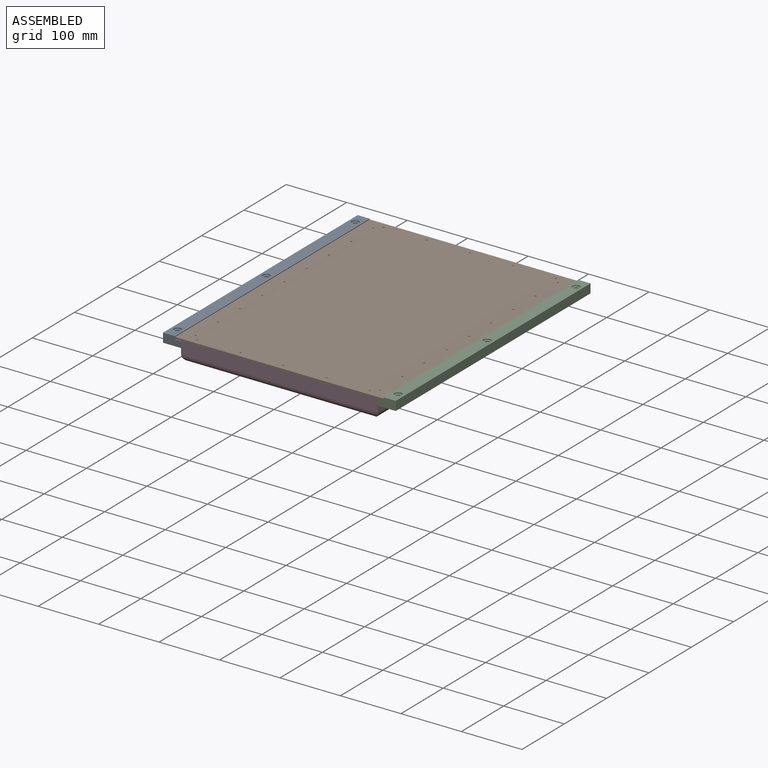
[diagram: assembled view]
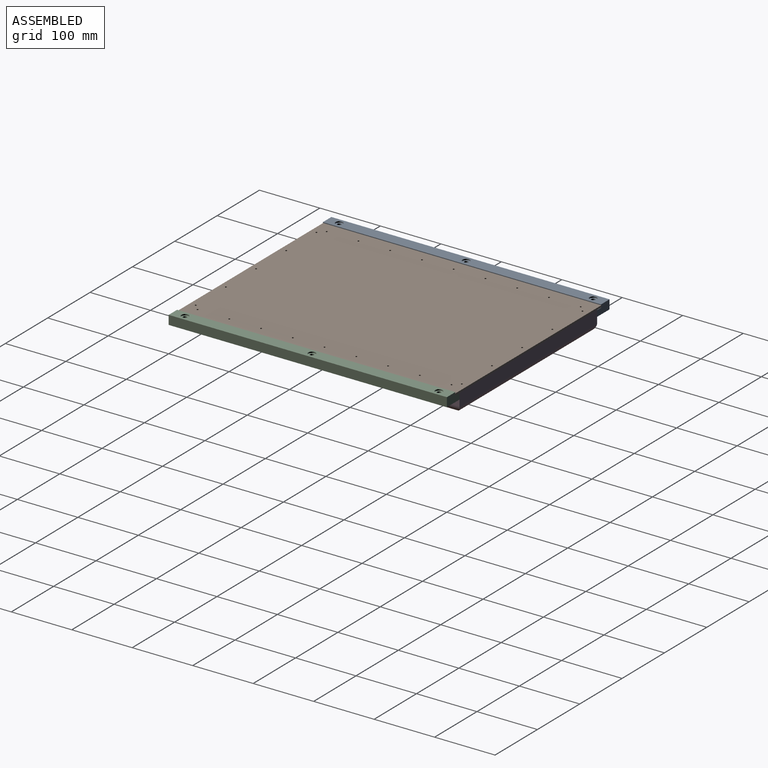
[diagram: assembled view, second angle]
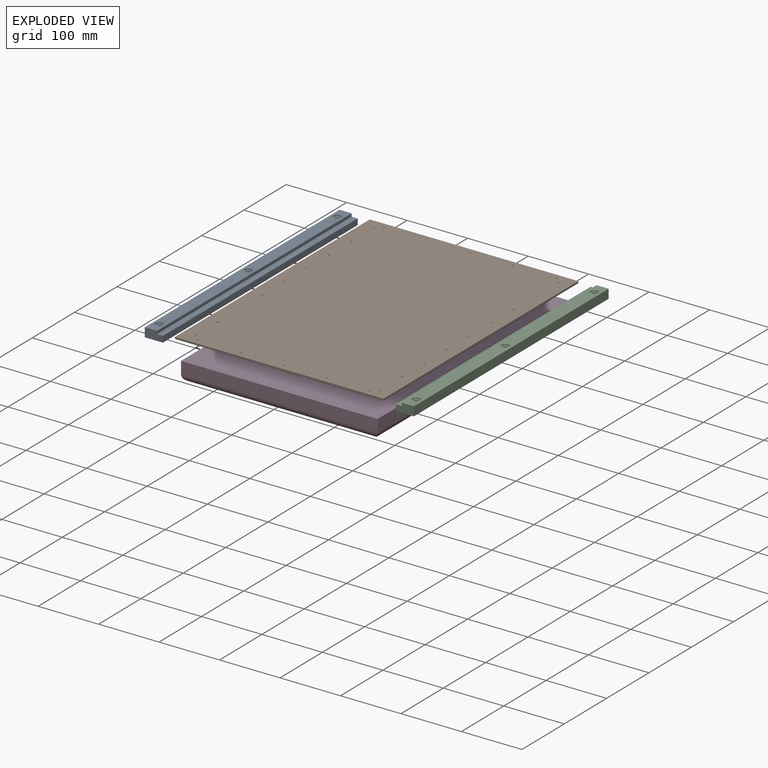
[diagram: exploded view]
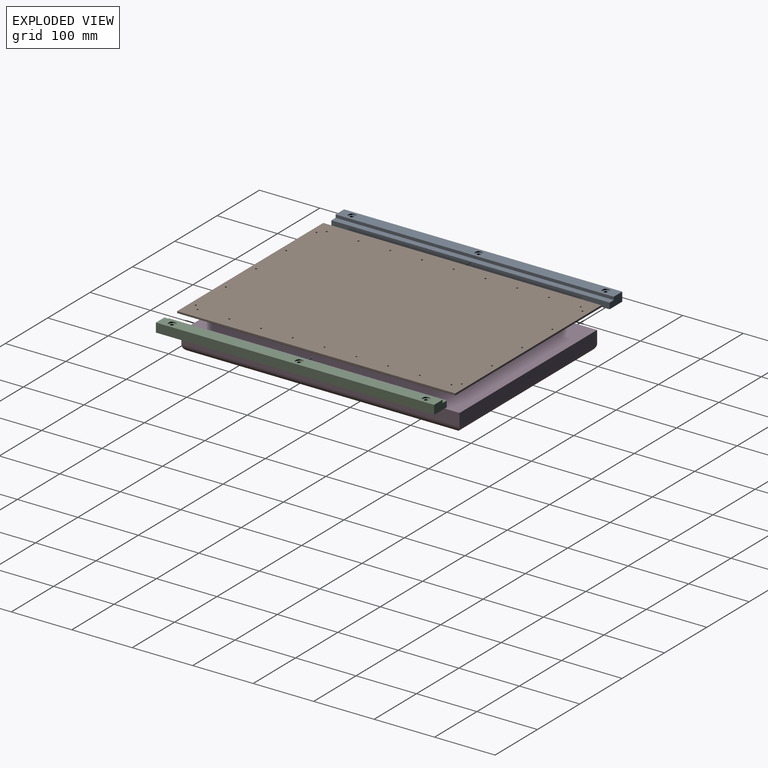
[diagram: exploded view, second angle]
ASSEMBLY  parts=4 mates=4
PART A: 23 faces, bbox 30x460x15 mm
  f0: cylinder r=3.25mm len=8mm, axis (0,0,-1), area 163.4mm2, adj f15,f21
  f1: cylinder r=3.25mm len=8mm, axis (0,0,-1), area 163.4mm2, adj f13,f19
  f2: cylinder r=3.25mm len=8mm, axis (0,0,-1), area 163.4mm2, adj f11,f17
  f3: plane 460x20mm, normal (0,0,1), area 8860.7mm2, adj f4,f8,f9,f10,f18,f20,f22
  f4: plane 460x15mm, normal (-1,0,0), area 6900mm2, adj f3,f5,f9,f10
  f5: plane 460x30mm, normal (0,0,-1), area 13514.9mm2, adj f4,f6,f9,f10,f12,f14,f16
  f6: plane 460x10mm, normal (1,0,0), area 4600mm2, adj f5,f7,f9,f10
  f7: plane 460x10mm, normal (0,0,1), area 4600mm2, adj f6,f8,f9,f10
  f8: plane 460x5mm, normal (1,0,0), area 2300mm2, adj f3,f7,f9,f10
  f9: plane 30x15mm, normal (0,1,0), area 400mm2, adj f3,f4,f5,f6,f7,f8
  f10: plane 30x15mm, normal (0,-1,0), area 400mm2, adj f3,f4,f5,f6,f7,f8
  f11: plane 11x11mm, normal (0,0,-1), area 61.9mm2, adj f2,f12
  f12: cylinder r=5.5mm len=11mm, axis (0,0,-1), area 172.8mm2, adj f5,f11
  f13: plane 11x11mm, normal (0,0,-1), area 61.9mm2, adj f1,f14
  f14: cylinder r=5.5mm len=11mm, axis (0,0,-1), area 172.8mm2, adj f5,f13
  f15: plane 11x11mm, normal (0,0,-1), area 61.9mm2, adj f0,f16
  f16: cylinder r=5.5mm len=11mm, axis (0,0,-1), area 172.8mm2, adj f5,f15
  f17: plane 12x12mm, normal (0,0,1), area 79.9mm2, adj f2,f18
  f18: cylinder r=6mm len=12mm, axis (0,0,1), area 75.4mm2, adj f3,f17
  f19: plane 12x12mm, normal (0,0,1), area 79.9mm2, adj f1,f20
  f20: cylinder r=6mm len=12mm, axis (0,0,1), area 75.4mm2, adj f3,f19
  f21: plane 12x12mm, normal (0,0,1), area 79.9mm2, adj f0,f22
  f22: cylinder r=6mm len=12mm, axis (0,0,1), area 75.4mm2, adj f3,f21
PART B: 34 faces, bbox 345x460x3 mm
  f0: plane 345x3mm, normal (0,1,0), area 1035mm2, adj f1,f3,f4,f5
  f1: plane 460x3mm, normal (-1,0,0), area 1380mm2, adj f0,f2,f4,f5
  f2: plane 345x3mm, normal (0,-1,0), area 1035mm2, adj f1,f3,f4,f5
  f3: plane 460x3mm, normal (1,0,0), area 1380mm2, adj f0,f2,f4,f5
  f4: plane 460x345mm, normal (0,0,1), area 158502.1mm2, adj f0,f1,f2,f3,f6,f7,f8,f9
  f5: plane 460x345mm, normal (0,0,-1), area 158502.1mm2, adj f0,f1,f2,f3,f6,f7,f8,f9
  f6: cylinder r=1.5mm len=3mm, axis (0,0,1), area 28.3mm2, adj f4,f5
  f7: cylinder r=1.5mm len=3mm, axis (0,0,1), area 28.3mm2, adj f4,f5
  f8: cylinder r=1.5mm len=3mm, axis (0,0,1), area 28.3mm2, adj f4,f5
  f9: cylinder r=1.5mm len=3mm, axis (0,0,1), area 28.3mm2, adj f4,f5
  f10: cylinder r=1.5mm len=3mm, axis (0,0,1), area 28.3mm2, adj f4,f5
  f11: cylinder r=1.5mm len=3mm, axis (0,0,1), area 28.3mm2, adj f4,f5
  f12: cylinder r=1.5mm len=3mm, axis (0,0,1), area 28.3mm2, adj f4,f5
  f13: cylinder r=1.5mm len=3mm, axis (0,0,1), area 28.3mm2, adj f4,f5
  f14: cylinder r=1.5mm len=3mm, axis (0,0,1), area 28.3mm2, adj f4,f5
  f15: cylinder r=1.5mm len=3mm, axis (0,0,1), area 28.3mm2, adj f4,f5
  f16: cylinder r=1.5mm len=3mm, axis (0,0,1), area 28.3mm2, adj f4,f5
  f17: cylinder r=1.5mm len=3mm, axis (0,0,1), area 28.3mm2, adj f4,f5
  f18: cylinder r=1.5mm len=3mm, axis (0,0,1), area 28.3mm2, adj f4,f5
  f19: cylinder r=1.5mm len=3mm, axis (0,0,1), area 28.3mm2, adj f4,f5
  f20: cylinder r=1.5mm len=3mm, axis (0,0,1), area 28.3mm2, adj f4,f5
  f21: cylinder r=1.5mm len=3mm, axis (0,0,1), area 28.3mm2, adj f4,f5
  f22: cylinder r=1.5mm len=3mm, axis (0,0,1), area 28.3mm2, adj f4,f5
  f23: cylinder r=1.5mm len=3mm, axis (0,0,1), area 28.3mm2, adj f4,f5
  f24: cylinder r=1.5mm len=3mm, axis (0,0,1), area 28.3mm2, adj f4,f5
  f25: cylinder r=1.5mm len=3mm, axis (0,0,1), area 28.3mm2, adj f4,f5
  f26: cylinder r=1.5mm len=3mm, axis (0,0,1), area 28.3mm2, adj f4,f5
  f27: cylinder r=1.5mm len=3mm, axis (0,0,1), area 28.3mm2, adj f4,f5
  f28: cylinder r=1.5mm len=3mm, axis (0,0,1), area 28.3mm2, adj f4,f5
  f29: cylinder r=1.5mm len=3mm, axis (0,0,1), area 28.3mm2, adj f4,f5
  f30: cylinder r=1.5mm len=3mm, axis (0,0,1), area 28.3mm2, adj f4,f5
  f31: cylinder r=1.5mm len=3mm, axis (0,0,1), area 28.3mm2, adj f4,f5
  f32: cylinder r=1.5mm len=3mm, axis (0,0,1), area 28.3mm2, adj f4,f5
  f33: cylinder r=1.5mm len=3mm, axis (0,0,1), area 28.3mm2, adj f4,f5
PART C: same geometry as A
PART D: 10 faces, bbox 325x460x32 mm
  f0: plane 460x20mm, normal (-1,0,0), area 9200mm2, adj f1,f3,f5,f6
  f1: plane 325x20mm, normal (0,-1,0), area 6500mm2, adj f0,f2,f5,f8
  f2: plane 460x20mm, normal (1,0,0), area 9200mm2, adj f1,f3,f5,f9
  f3: plane 325x20mm, normal (0,1,0), area 6500mm2, adj f0,f2,f5,f7
  f4: plane 436x301mm, normal (0,0,1), area 131236mm2, adj f6,f7,f8,f9
  f5: plane 460x325mm, normal (0,0,-1), area 149500mm2, adj f0,f1,f2,f3
  f6: cylinder r=12mm len=460mm, axis (0,1,0), area 8506.4mm2, adj f0,f4,f7,f8
  f7: cylinder r=12mm len=325mm, axis (1,0,0), area 5961.7mm2, adj f3,f4,f6,f9
  f8: cylinder r=12mm len=325mm, axis (-1,0,0), area 5961.7mm2, adj f1,f4,f6,f9
  f9: cylinder r=12mm len=460mm, axis (0,-1,0), area 8506.4mm2, adj f2,f4,f7,f8
PLACE A t=(-181.91,-288.18,49.78)mm
PLACE B t=(10.28,-57.88,60.5)mm
PLACE C rot(axis=(0,0,1),180deg) t=(202.78,172.12,50.5)mm
PLACE D rot(axis=(1,0,0),180deg) t=(10.28,-57.88,60.5)mm
MATE planar C.f8 <-> B.f3  axis (-1,0,0) through (182.78,-57.88,63)mm
MATE parallel C.f10 <-> B.f0  axis (0,1,0) through (189.03,172.12,57.37)mm
MATE planar D.f5 <-> B.f5  axis (0,0,1) through (10.28,-57.88,60.5)mm
MATE planar C.f7 <-> B.f5  axis (0,0,1) through (177.78,-57.88,60.5)mm
